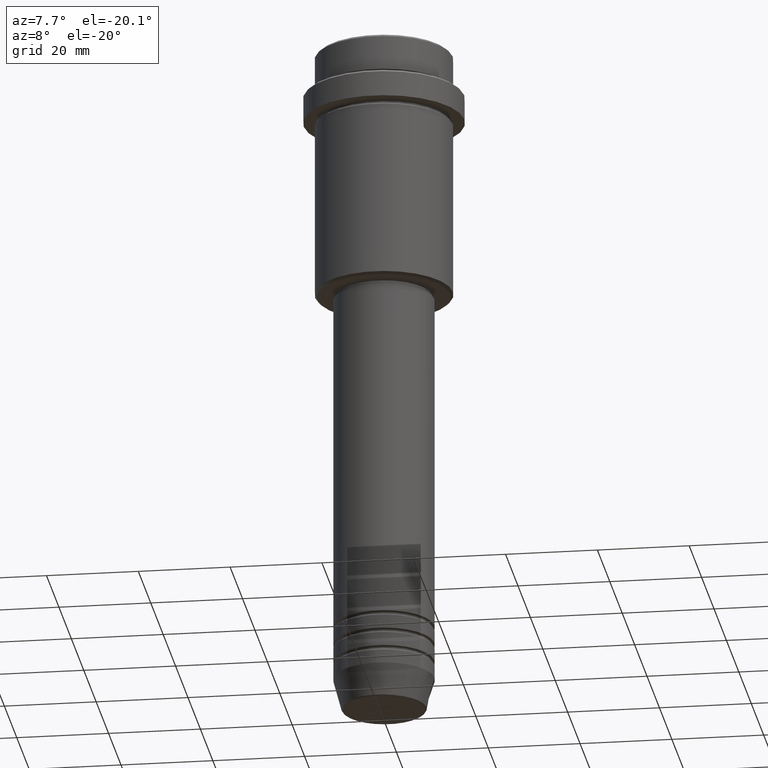
[diagram: clean part render]
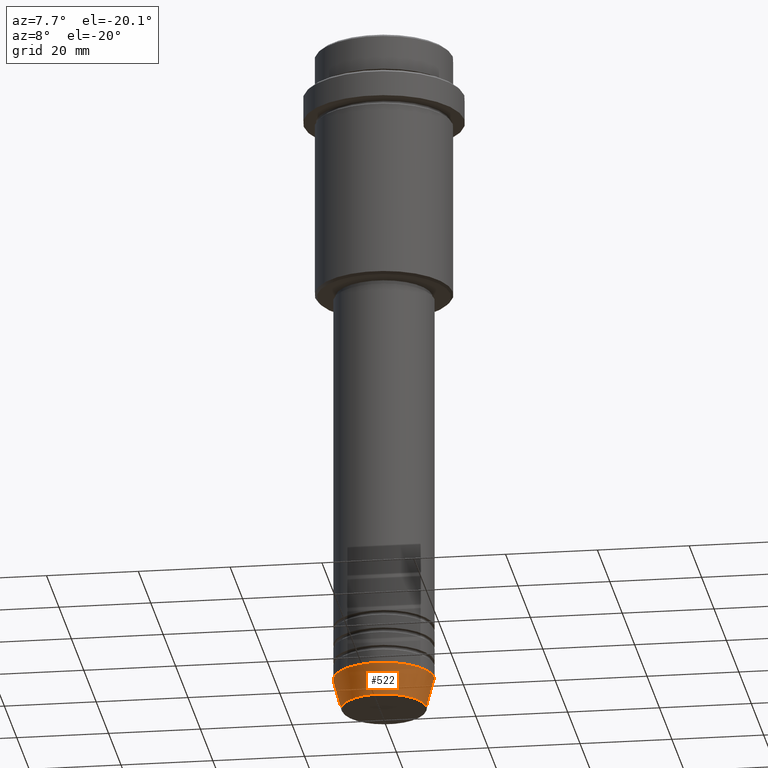
[diagram: same view with one face highlighted and labeled with its STEP entity id]
A machine part, auxiliary view. The second image highlights one B-rep face of the part: STEP entity #522.
In plain terms, the highlighted conical surface has half-angle 15 deg.
Its self-contained STEP definition (entity closure, byte-faithful):
#110 = VERTEX_POINT ( 'NONE', #814 ) ;
#119 = DIRECTION ( 'NONE',  ( 0.2588190451025222938, 0.000000000000000000, 0.9659258262890678681 ) ) ;
#170 = DIRECTION ( 'NONE',  ( -0.2588190451025222938, 3.169619151431783430E-17, 0.9659258262890678681 ) ) ;
#180 = AXIS2_PLACEMENT_3D ( 'NONE', #281, #1262, #391 ) ;
#213 = CARTESIAN_POINT ( 'NONE',  ( 0.000000000000000000, 0.000000000000000000, -149.6294095225512422 ) ) ;
#254 = LINE ( 'NONE', #482, #576 ) ;
#281 = CARTESIAN_POINT ( 'NONE',  ( 0.000000000000000000, 0.000000000000000000, -143.0000000000000000 ) ) ;
#301 = VERTEX_POINT ( 'NONE', #1063 ) ;
#336 = DIRECTION ( 'NONE',  ( -0.000000000000000000, -0.000000000000000000, 1.000000000000000000 ) ) ;
#357 = ORIENTED_EDGE ( 'NONE', *, *, #688, .F. ) ;
#363 = CARTESIAN_POINT ( 'NONE',  ( 11.00000000000000000, 0.000000000000000000, -143.0000000000000000 ) ) ;
#387 = EDGE_CURVE ( 'NONE', #301, #1182, #442, .T. ) ;
#391 = DIRECTION ( 'NONE',  ( 1.000000000000000000, 0.000000000000000000, 0.000000000000000000 ) ) ;
#408 = ORIENTED_EDGE ( 'NONE', *, *, #387, .T. ) ;
#429 = CIRCLE ( 'NONE', #1366, 9.223655072137191269 ) ;
#442 = LINE ( 'NONE', #363, #1363 ) ;
#482 = CARTESIAN_POINT ( 'NONE',  ( -11.00000000000000000, 1.347111479062088405E-15, -143.0000000000000000 ) ) ;
#484 = FACE_OUTER_BOUND ( 'NONE', #1204, .T. ) ;
#522 = ADVANCED_FACE ( 'NONE', ( #484 ), #1385, .T. ) ;
#530 = DIRECTION ( 'NONE',  ( -0.000000000000000000, -0.000000000000000000, 1.000000000000000000 ) ) ;
#576 = VECTOR ( 'NONE', #170, 1000.000000000000000 ) ;
#619 = AXIS2_PLACEMENT_3D ( 'NONE', #1179, #530, #1091 ) ;
#652 = CARTESIAN_POINT ( 'NONE',  ( -11.00000000000000000, 1.347111479062088405E-15, -143.0000000000000000 ) ) ;
#677 = VERTEX_POINT ( 'NONE', #652 ) ;
#688 = EDGE_CURVE ( 'NONE', #677, #1182, #731, .T. ) ;
#731 = CIRCLE ( 'NONE', #619, 11.00000000000000000 ) ;
#801 = ORIENTED_EDGE ( 'NONE', *, *, #1258, .T. ) ;
#814 = CARTESIAN_POINT ( 'NONE',  ( -9.223655072137191269, 1.238341722557647202E-15, -149.6294095225512422 ) ) ;
#898 = ORIENTED_EDGE ( 'NONE', *, *, #1052, .F. ) ;
#1052 = EDGE_CURVE ( 'NONE', #110, #677, #254, .T. ) ;
#1063 = CARTESIAN_POINT ( 'NONE',  ( 9.223655072137191269, 0.000000000000000000, -149.6294095225512422 ) ) ;
#1091 = DIRECTION ( 'NONE',  ( 1.000000000000000000, 0.000000000000000000, 0.000000000000000000 ) ) ;
#1179 = CARTESIAN_POINT ( 'NONE',  ( 0.000000000000000000, 0.000000000000000000, -143.0000000000000000 ) ) ;
#1182 = VERTEX_POINT ( 'NONE', #1297 ) ;
#1204 = EDGE_LOOP ( 'NONE', ( #898, #801, #408, #357 ) ) ;
#1223 = DIRECTION ( 'NONE',  ( 1.000000000000000000, 0.000000000000000000, 0.000000000000000000 ) ) ;
#1258 = EDGE_CURVE ( 'NONE', #110, #301, #429, .T. ) ;
#1262 = DIRECTION ( 'NONE',  ( -0.000000000000000000, -0.000000000000000000, 1.000000000000000000 ) ) ;
#1297 = CARTESIAN_POINT ( 'NONE',  ( 11.00000000000000000, 0.000000000000000000, -143.0000000000000000 ) ) ;
#1363 = VECTOR ( 'NONE', #119, 1000.000000000000000 ) ;
#1366 = AXIS2_PLACEMENT_3D ( 'NONE', #213, #336, #1223 ) ;
#1385 = CONICAL_SURFACE ( 'NONE', #180, 11.00000000000000000, 0.2617993877991510177 ) ;